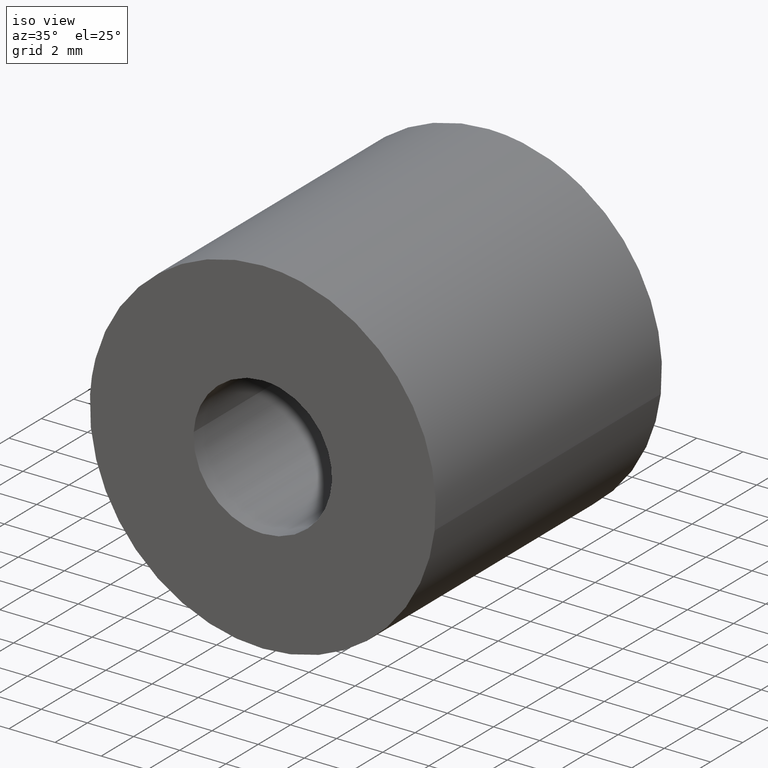
[diagram: clean part render]
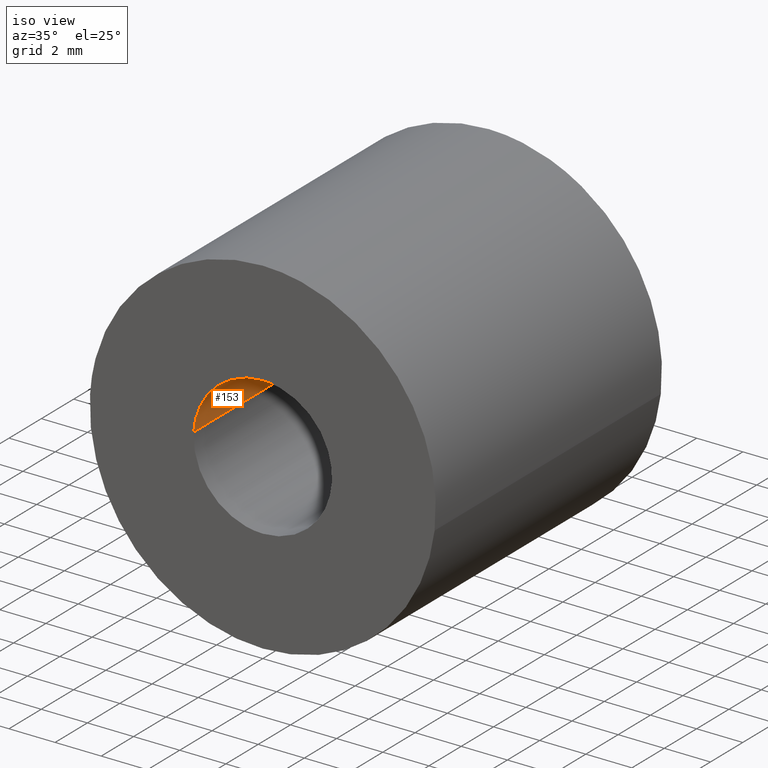
[diagram: same view with one face highlighted and labeled with its STEP entity id]
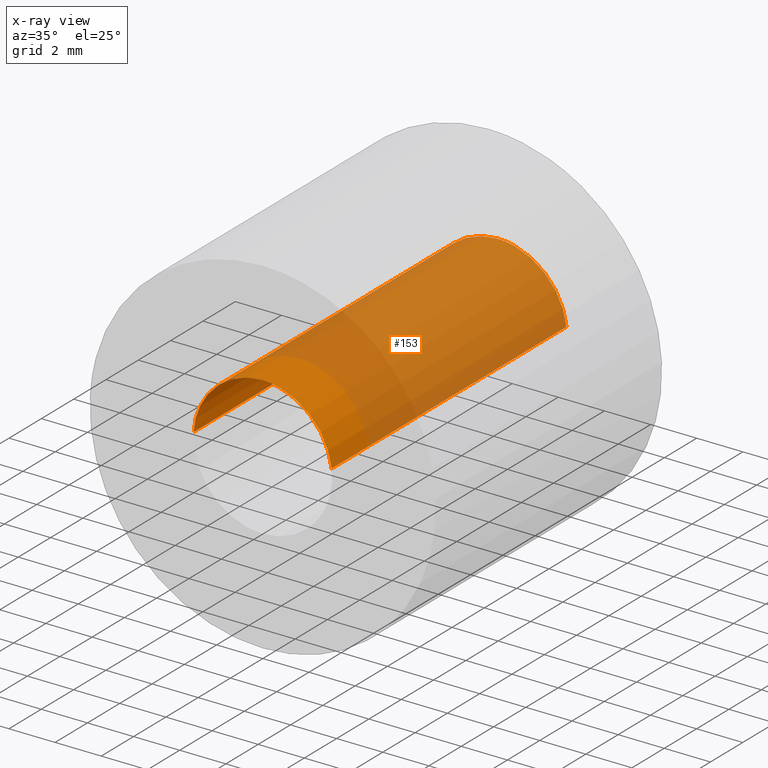
[diagram: x-ray of the same camera — body ghosted, the highlighted face saturated]
A machine part, iso view. The second image highlights one B-rep face of the part: STEP entity #153.
The next image is the same camera in x-ray: the body ghosted, the highlighted face saturated — about 81% of this face is hidden behind the body in this view.
In plain terms, the highlighted face is a freeform B-spline surface patch.
Its self-contained STEP definition (entity closure, byte-faithful):
#44=CARTESIAN_POINT('',(2.980407580307141,14.905037499999999,0.342301994221081));
#45=CARTESIAN_POINT('',(2.693445457758243,14.905037500000009,2.840867879739621));
#46=CARTESIAN_POINT('',(0.183145618604571,14.905037500000001,2.994404395265600));
#47=CARTESIAN_POINT('',(-2.811258776661029,14.905037500000006,3.177550013870171));
#48=CARTESIAN_POINT('',(-2.994404395265600,14.905037500000001,0.183145618604571));
#49=CARTESIAN_POINT('',(2.980407580307141,-0.372625937500001,0.342301994221081));
#50=CARTESIAN_POINT('',(2.693445457758243,-0.372625937500001,2.840867879739621));
#51=CARTESIAN_POINT('',(0.183145618604571,-0.372625937500001,2.994404395265600));
#52=CARTESIAN_POINT('',(-2.811258776661029,-0.372625937500001,3.177550013870171));
#53=CARTESIAN_POINT('',(-2.994404395265600,-0.372625937500001,0.183145618604571));
#61=(BOUNDED_SURFACE()B_SPLINE_SURFACE(2,1,((#44,#49),(#45,#50),(#46,#51),(#47,#52),(#48,#53)),.UNSPECIFIED.,.F.,.F.,.U.)B_SPLINE_SURFACE_WITH_KNOTS((3,2,3),(2,2),(0.0,4.374095218659882,9.344657967137021),(0.0,15.277663437500010),.UNSPECIFIED.)GEOMETRIC_REPRESENTATION_ITEM()RATIONAL_B_SPLINE_SURFACE(((0.938140952186599,0.938140952186599),(0.742253967444162,0.742253967444162),(1.0,1.0),(0.707106781186548,0.707106781186548),(1.0,1.0)))REPRESENTATION_ITEM('')SURFACE());
#62=CARTESIAN_POINT('',(2.980407580306507,14.541499999999999,0.342301994226599));
#63=VERTEX_POINT('',#62);
#64=CARTESIAN_POINT('',(0.0,14.541499999999999,3.0));
#65=VERTEX_POINT('',#64);
#66=CARTESIAN_POINT('',(2.980407580306507,14.541500000000003,0.342301994226599));
#67=CARTESIAN_POINT('',(2.675169017146770,14.541500000000001,3.000000000000000));
#68=CARTESIAN_POINT('',(0.0,14.541499999999999,3.0));
#76=(BOUNDED_CURVE()B_SPLINE_CURVE(2,(#66,#67,#68),.UNSPECIFIED.,.F.,.U.)B_SPLINE_CURVE_WITH_KNOTS((3,3),(0.269767755877236,0.500000000000000),.UNSPECIFIED.)CURVE()GEOMETRIC_REPRESENTATION_ITEM()RATIONAL_B_SPLINE_CURVE((0.957343736459428,0.730266147776956,1.0))REPRESENTATION_ITEM(''));
#77=EDGE_CURVE('',#63,#65,#76,.T.);
#78=ORIENTED_EDGE('',*,*,#77,.F.);
#79=CARTESIAN_POINT('',(2.980407962932764,7.988144E-016,0.342298662684685));
#80=VERTEX_POINT('',#79);
#81=CARTESIAN_POINT('',(2.980407580306507,14.541499999999999,0.342301994226599));
#82=CARTESIAN_POINT('',(2.980407962932764,7.988144E-016,0.342298662684685));
#83=QUASI_UNIFORM_CURVE('',1,(#81,#82),.UNSPECIFIED.,.F.,.U.);
#84=EDGE_CURVE('',#63,#80,#83,.T.);
#85=ORIENTED_EDGE('',*,*,#84,.T.);
#86=CARTESIAN_POINT('',(0.0,0.0,3.0));
#87=VERTEX_POINT('',#86);
#88=CARTESIAN_POINT('',(2.980407962932764,7.988144E-016,0.342298662684685));
#89=CARTESIAN_POINT('',(2.675172027152508,0.0,3.0));
#90=CARTESIAN_POINT('',(0.0,0.0,3.0));
#98=(BOUNDED_CURVE()B_SPLINE_CURVE(2,(#88,#89,#90),.UNSPECIFIED.,.F.,.U.)B_SPLINE_CURVE_WITH_KNOTS((3,3),(0.269767566702437,0.500000000000000),.UNSPECIFIED.)CURVE()GEOMETRIC_REPRESENTATION_ITEM()RATIONAL_B_SPLINE_CURVE((0.957344109625193,0.730265926144893,1.0))REPRESENTATION_ITEM(''));
#99=EDGE_CURVE('',#80,#87,#98,.T.);
#100=ORIENTED_EDGE('',*,*,#99,.T.);
#101=CARTESIAN_POINT('',(-2.994404452605104,-8.881784E-016,0.183144681107156));
#102=VERTEX_POINT('',#101);
#103=CARTESIAN_POINT('',(0.0,0.0,3.0));
#104=CARTESIAN_POINT('',(-2.822119971134776,0.0,3.000000000000001));
#105=CARTESIAN_POINT('',(-2.994404452605104,-8.881784E-016,0.183144681107156));
#113=(BOUNDED_CURVE()B_SPLINE_CURVE(2,(#103,#104,#105),.UNSPECIFIED.,.F.,.U.)B_SPLINE_CURVE_WITH_KNOTS((3,3),(0.500000000000000,0.739333070284946),.UNSPECIFIED.)CURVE()GEOMETRIC_REPRESENTATION_ITEM()RATIONAL_B_SPLINE_CURVE((1.0,0.719603866702944,0.976072273229979))REPRESENTATION_ITEM(''));
#114=EDGE_CURVE('',#87,#102,#113,.T.);
#115=ORIENTED_EDGE('',*,*,#114,.T.);
#116=CARTESIAN_POINT('',(-2.994404411156125,14.541499999999999,0.183145358796415));
#117=VERTEX_POINT('',#116);
#118=CARTESIAN_POINT('',(-2.994404411156125,14.541499999999999,0.183145358796415));
#119=CARTESIAN_POINT('',(-2.994404452605104,-8.881784E-016,0.183144681107156));
#120=QUASI_UNIFORM_CURVE('',1,(#118,#119),.UNSPECIFIED.,.F.,.U.);
#121=EDGE_CURVE('',#117,#102,#120,.T.);
#122=ORIENTED_EDGE('',*,*,#121,.F.);
#123=CARTESIAN_POINT('',(-2.990752001199405,14.541500000000060,0.235377287183957));
#124=VERTEX_POINT('',#123);
#125=CARTESIAN_POINT('',(-2.990752001199405,14.541500000000058,0.235377287183957));
#126=CARTESIAN_POINT('',(-2.992806128089515,14.541500000000001,0.209277130363528));
#127=CARTESIAN_POINT('',(-2.994404411156125,14.541499999999997,0.183145358796415));
#135=(BOUNDED_CURVE()B_SPLINE_CURVE(2,(#125,#126,#127),.UNSPECIFIED.,.F.,.U.)B_SPLINE_CURVE_WITH_KNOTS((3,3),(0.736331300632719,0.739332992183858),.UNSPECIFIED.)CURVE()GEOMETRIC_REPRESENTATION_ITEM()RATIONAL_B_SPLINE_CURVE((0.969723356171716,0.972855506808519,0.976072105844379))REPRESENTATION_ITEM(''));
#136=EDGE_CURVE('',#124,#117,#135,.T.);
#137=ORIENTED_EDGE('',*,*,#136,.F.);
#138=CARTESIAN_POINT('',(0.0,14.541499999999999,3.0));
#139=CARTESIAN_POINT('',(-2.773171474973852,14.541500000000005,3.0));
#140=CARTESIAN_POINT('',(-2.990752001199405,14.541500000000056,0.235377287183957));
#148=(BOUNDED_CURVE()B_SPLINE_CURVE(2,(#138,#139,#140),.UNSPECIFIED.,.F.,.U.)B_SPLINE_CURVE_WITH_KNOTS((3,3),(0.500000000000000,0.736331300632719),.UNSPECIFIED.)CURVE()GEOMETRIC_REPRESENTATION_ITEM()RATIONAL_B_SPLINE_CURVE((1.0,0.723120658605252,0.969723356171717))REPRESENTATION_ITEM(''));
#149=EDGE_CURVE('',#65,#124,#148,.T.);
#150=ORIENTED_EDGE('',*,*,#149,.F.);
#151=EDGE_LOOP('',(#78,#85,#100,#115,#122,#137,#150));
#152=FACE_OUTER_BOUND('',#151,.T.);
#153=ADVANCED_FACE('',(#152),#61,.F.);